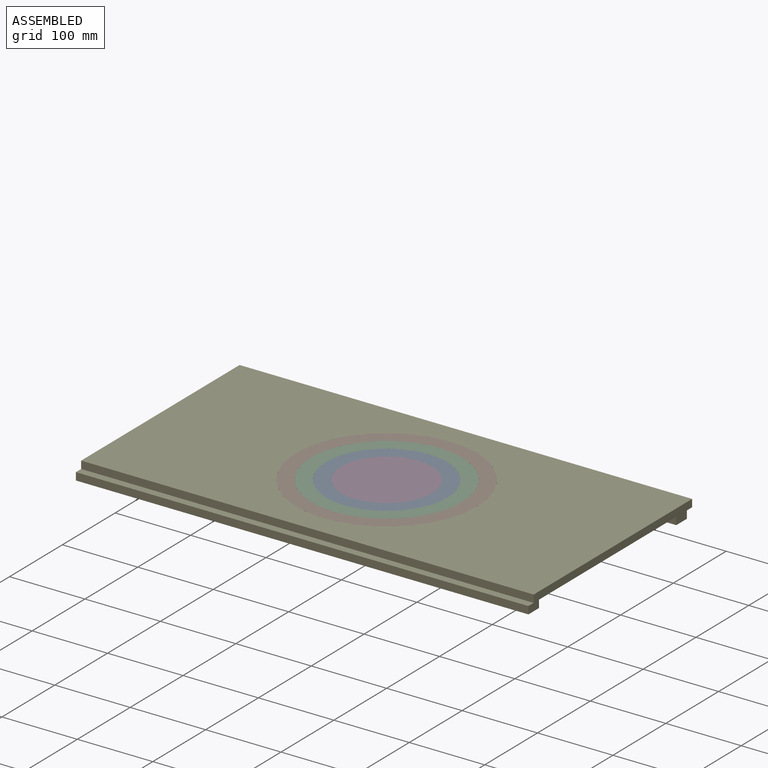
[diagram: assembled view]
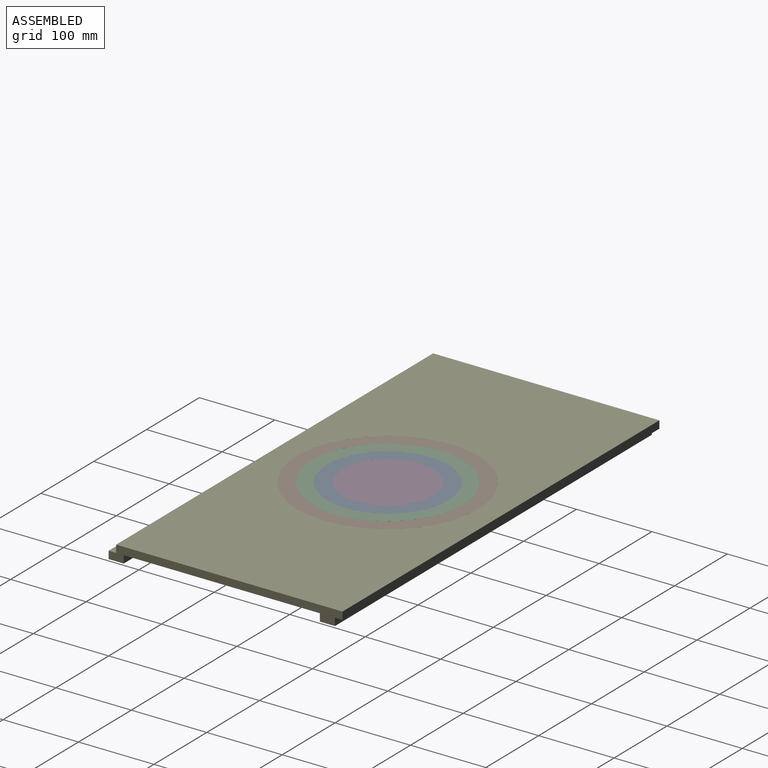
[diagram: assembled view, second angle]
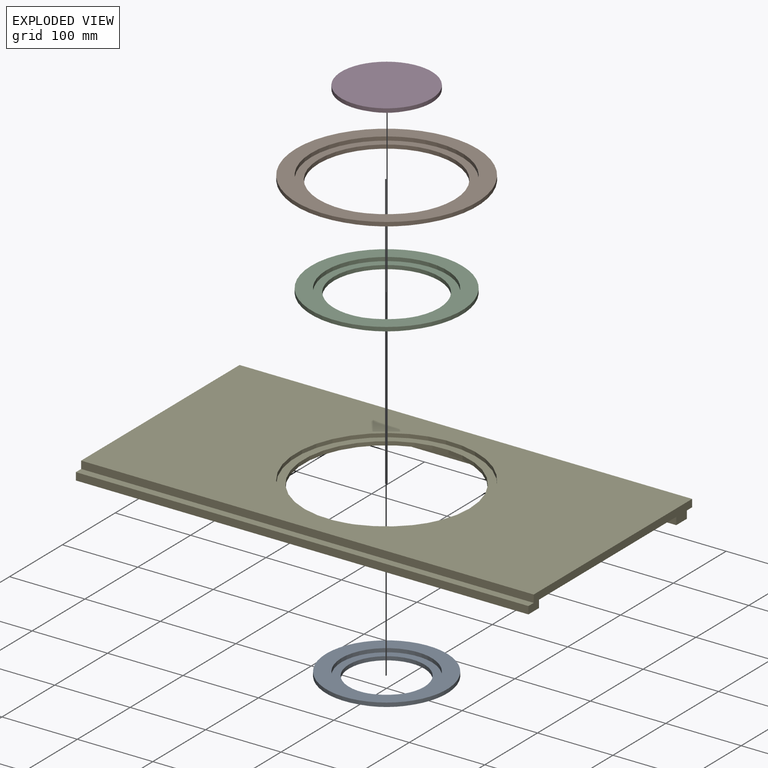
[diagram: exploded view]
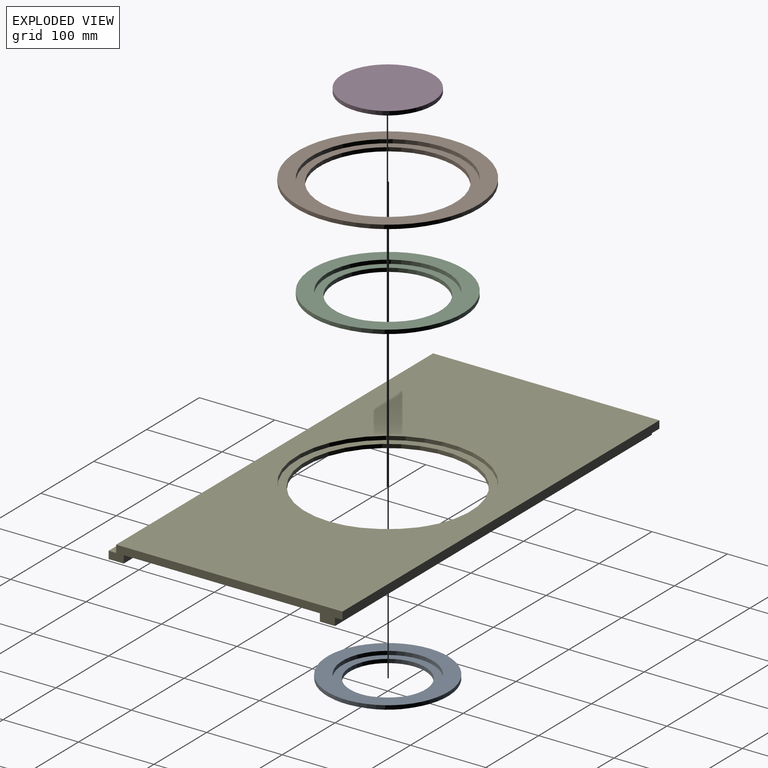
[diagram: exploded view, second angle]
ASSEMBLY  parts=5 mates=4
PART A: 8 faces, bbox 160x160x10 mm
  f0: plane 120x120mm, normal (0,0,1), area 3455.8mm2, adj f1,f7
  f1: cylinder r=50mm len=100mm, axis (0,0,-1), area 1570.8mm2, adj f0,f2
  f2: plane 140x140mm, normal (0,0,-1), area 7539.8mm2, adj f1,f3
  f3: cylinder r=70mm len=140mm, axis (0,0,-1), area 2199.1mm2, adj f2,f4
  f4: plane 160x160mm, normal (0,0,-1), area 4712.4mm2, adj f3,f5
  f5: cylinder r=80mm len=160mm, axis (0,0,-1), area 2513.3mm2, adj f4,f6
  f6: plane 160x160mm, normal (0,0,1), area 8796.5mm2, adj f5,f7
  f7: cylinder r=60mm len=120mm, axis (0,0,-1), area 1885mm2, adj f0,f6
PART B: 8 faces, bbox 240x240x10 mm
  f0: plane 200x200mm, normal (0,0,1), area 5969mm2, adj f1,f7
  f1: cylinder r=90mm len=180mm, axis (0,0,-1), area 2827.4mm2, adj f0,f2
  f2: plane 220x220mm, normal (0,0,-1), area 12566.4mm2, adj f1,f3
  f3: cylinder r=110mm len=220mm, axis (0,0,-1), area 3455.8mm2, adj f2,f4
  f4: plane 240x240mm, normal (0,0,-1), area 7225.7mm2, adj f3,f5
  f5: cylinder r=120mm len=240mm, axis (0,0,-1), area 3769.9mm2, adj f4,f6
  f6: plane 240x240mm, normal (0,0,1), area 13823mm2, adj f5,f7
  f7: cylinder r=100mm len=200mm, axis (0,0,-1), area 3141.6mm2, adj f0,f6
PART C: 8 faces, bbox 200x200x10 mm
  f0: plane 160x160mm, normal (0,0,1), area 4712.4mm2, adj f1,f7
  f1: cylinder r=70mm len=140mm, axis (0,0,-1), area 2199.1mm2, adj f0,f2
  f2: plane 180x180mm, normal (0,0,-1), area 10053.1mm2, adj f1,f3
  f3: cylinder r=90mm len=180mm, axis (0,0,-1), area 2827.4mm2, adj f2,f4
  f4: plane 200x200mm, normal (0,0,-1), area 5969mm2, adj f3,f5
  f5: cylinder r=100mm len=200mm, axis (0,0,-1), area 3141.6mm2, adj f4,f6
  f6: plane 200x200mm, normal (0,0,1), area 11309.7mm2, adj f5,f7
  f7: cylinder r=80mm len=160mm, axis (0,0,-1), area 2513.3mm2, adj f0,f6
PART D: 5 faces, bbox 120x120x10 mm
  f0: plane 120x120mm, normal (0,0,1), area 11309.7mm2, adj f4
  f1: plane 100x100mm, normal (0,0,-1), area 7854mm2, adj f2
  f2: cylinder r=50mm len=100mm, axis (0,0,1), area 1570.8mm2, adj f1,f3
  f3: plane 120x120mm, normal (0,0,-1), area 3455.8mm2, adj f2,f4
  f4: cylinder r=60mm len=120mm, axis (0,0,1), area 1885mm2, adj f0,f3
PART E: 17 faces, bbox 600x310x20 mm
  f0: plane 600x260mm, normal (0,0,-1), area 117986.7mm2, adj f3,f6,f8,f10,f14
  f1: plane 600x10mm, normal (0,0,-1), area 6000mm2, adj f3,f4,f6,f11
  f2: plane 600x10mm, normal (0,-1,0), area 6000mm2, adj f3,f6,f7,f16
  f3: plane 310x20mm, normal (1,0,0), area 3400mm2, adj f0,f1,f2,f4,f7,f10,f11,f12
  f4: plane 600x10mm, normal (0,1,0), area 6000mm2, adj f1,f3,f6,f7
  f5: cylinder r=120mm len=240mm, axis (0,0,-1), area 3769.9mm2, adj f7,f9
  f6: plane 310x20mm, normal (-1,0,0), area 3400mm2, adj f0,f1,f2,f4,f7,f10,f11,f12
  f7: plane 600x300mm, normal (0,0,1), area 134761.1mm2, adj f2,f3,f4,f5,f6
  f8: cylinder r=110mm len=220mm, axis (0,0,-1), area 3455.8mm2, adj f0,f9
  f9: plane 240x240mm, normal (0,0,1), area 7225.7mm2, adj f5,f8
  f10: plane 600x10mm, normal (0,-1,0), area 6000mm2, adj f0,f3,f6,f12
  f11: plane 600x10mm, normal (0,1,0), area 6000mm2, adj f1,f3,f6,f12
  f12: plane 600x20mm, normal (0,0,-1), area 12000mm2, adj f3,f6,f10,f11
  f13: plane 600x10mm, normal (0,-1,0), area 6000mm2, adj f3,f6,f15,f16
  f14: plane 600x10mm, normal (0,1,0), area 6000mm2, adj f0,f3,f6,f15
  f15: plane 600x20mm, normal (0,0,-1), area 12000mm2, adj f3,f6,f13,f14
  f16: plane 600x10mm, normal (0,0,1), area 6000mm2, adj f2,f3,f6,f13
PLACE A at identity
PLACE B at identity
PLACE C at identity
PLACE D at identity
PLACE E at identity fixed
MATE cylindrical A.f1 <-> C.f1  axis (0,0,-1) through (0,0,5)mm
MATE cylindrical B.f1 <-> E.f5  axis (0,0,-1) through (0,0,5)mm
MATE cylindrical D.f2 <-> A.f1  axis (0,0,-1) through (0,0,5)mm
MATE cylindrical C.f1 <-> B.f1  axis (0,0,-1) through (0,0,5)mm
